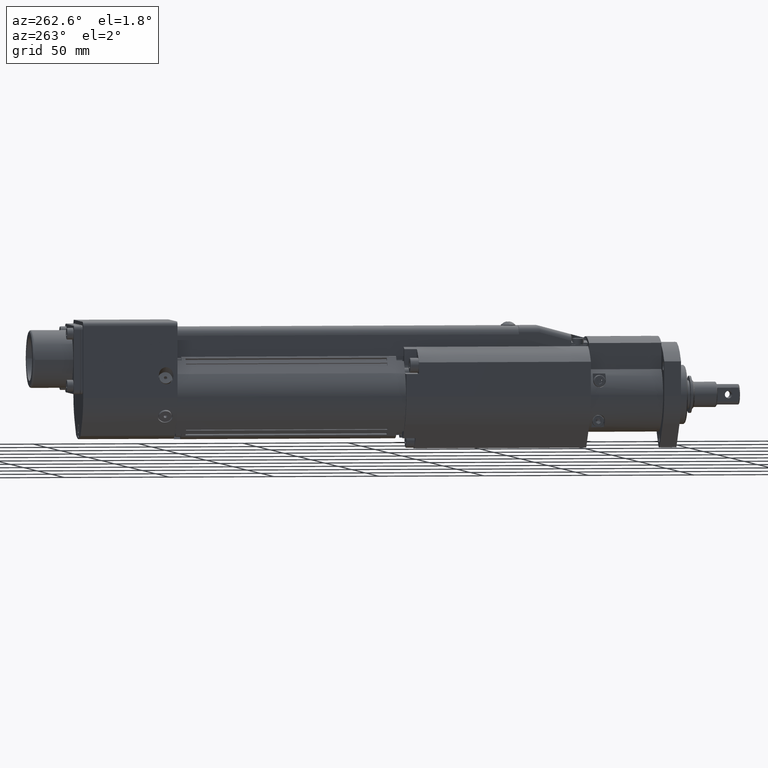
[diagram: clean part render]
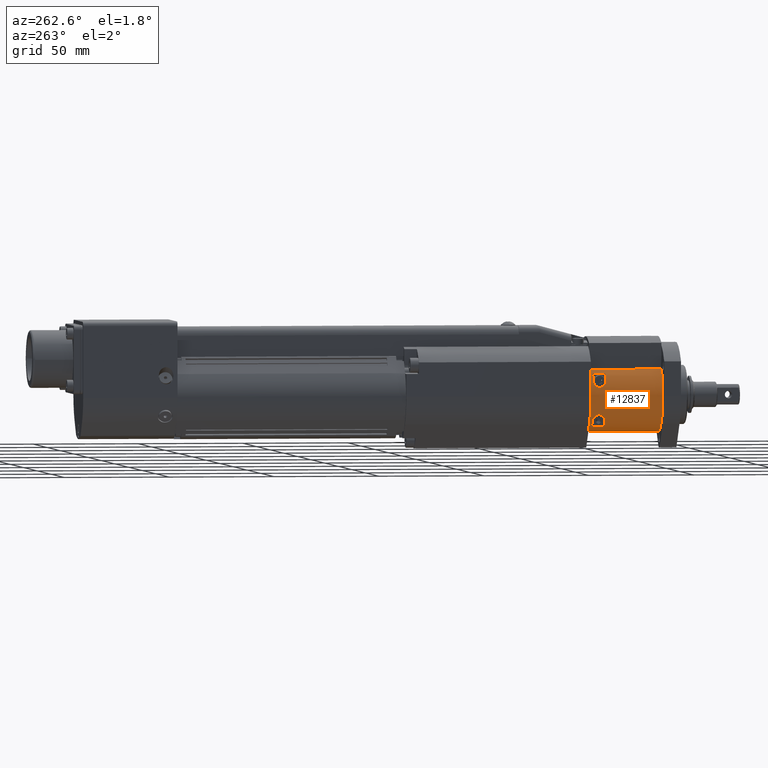
[diagram: same view with one face highlighted and labeled with its STEP entity id]
A machine part, auxiliary view. The second image highlights one B-rep face of the part: STEP entity #12837.
In plain terms, the highlighted cylindrical surface (partial cylindrical patch) has radius 17.5 mm, axis along (0, 1, -0).
Its self-contained STEP definition (entity closure, byte-faithful):
#219=B_SPLINE_CURVE_WITH_KNOTS('',3,(#22070,#22071,#22072,#22073,#22074,
#22075,#22076,#22077,#22078,#22079,#22080,#22081,#22082,#22083,#22084,#22085,
#22086,#22087,#22088),.UNSPECIFIED.,.F.,.F.,(4,2,2,2,3,2,2,2,4),(-0.465745547031507,
-0.345290531737388,-0.224835516443268,-0.112417758221634,0.,0.112417758221634,
0.224835516443268,0.345290531737387,0.465745547031506),.UNSPECIFIED.);
#220=B_SPLINE_CURVE_WITH_KNOTS('',3,(#22098,#22099,#22100,#22101,#22102,
#22103,#22104,#22105,#22106,#22107,#22108,#22109,#22110,#22111,#22112,#22113,
#22114,#22115),.UNSPECIFIED.,.F.,.F.,(4,2,2,2,2,2,2,2,4),(0.590634674204666,
0.737450123079501,0.884265571954336,0.994954185496832,1.10564279903933,
1.22353020791502,1.34141761679071,1.4810319807165,1.6206463446423),
 .UNSPECIFIED.);
#441=CYLINDRICAL_SURFACE('',#14072,17.5);
#533=FACE_BOUND('',#2018,.T.);
#534=FACE_BOUND('',#2019,.T.);
#1231=FACE_OUTER_BOUND('',#2017,.T.);
#2017=EDGE_LOOP('',(#10956,#10957,#10958,#10959));
#2018=EDGE_LOOP('',(#10960,#10961,#10962,#10963));
#2019=EDGE_LOOP('',(#10964,#10965,#10966,#10967));
#2521=CIRCLE('',#13988,17.5);
#2523=CIRCLE('',#13991,17.5);
#2524=CIRCLE('',#13993,17.5);
#2525=CIRCLE('',#13995,17.5);
#2527=CIRCLE('',#13999,17.5);
#2542=CIRCLE('',#14065,17.5);
#3532=LINE('',#22125,#4588);
#3535=LINE('',#22130,#4591);
#3598=LINE('',#22408,#4654);
#3599=LINE('',#22410,#4655);
#4588=VECTOR('',#17350,10.);
#4591=VECTOR('',#17357,10.);
#4654=VECTOR('',#17548,10.);
#4655=VECTOR('',#17551,10.);
#5694=VERTEX_POINT('',#22037);
#5695=VERTEX_POINT('',#22039);
#5698=VERTEX_POINT('',#22049);
#5699=VERTEX_POINT('',#22050);
#5701=VERTEX_POINT('',#22056);
#5702=VERTEX_POINT('',#22057);
#5704=VERTEX_POINT('',#22063);
#5705=VERTEX_POINT('',#22064);
#5707=VERTEX_POINT('',#22091);
#5708=VERTEX_POINT('',#22092);
#5712=VERTEX_POINT('',#22124);
#5778=VERTEX_POINT('',#22398);
#7379=EDGE_CURVE('',#5694,#5695,#2521,.T.);
#7385=EDGE_CURVE('',#5698,#5699,#2523,.T.);
#7388=EDGE_CURVE('',#5701,#5702,#2524,.T.);
#7391=EDGE_CURVE('',#5704,#5705,#2525,.T.);
#7394=EDGE_CURVE('',#5699,#5704,#219,.T.);
#7396=EDGE_CURVE('',#5707,#5708,#2527,.T.);
#7399=EDGE_CURVE('',#5702,#5707,#220,.T.);
#7404=EDGE_CURVE('',#5712,#5695,#3532,.T.);
#7407=EDGE_CURVE('',#5708,#5701,#3535,.T.);
#7508=EDGE_CURVE('',#5712,#5778,#2542,.T.);
#7512=EDGE_CURVE('',#5705,#5698,#3598,.T.);
#7513=EDGE_CURVE('',#5694,#5778,#3599,.T.);
#10956=ORIENTED_EDGE('',*,*,#7513,.T.);
#10957=ORIENTED_EDGE('',*,*,#7508,.F.);
#10958=ORIENTED_EDGE('',*,*,#7404,.T.);
#10959=ORIENTED_EDGE('',*,*,#7379,.F.);
#10960=ORIENTED_EDGE('',*,*,#7512,.F.);
#10961=ORIENTED_EDGE('',*,*,#7391,.F.);
#10962=ORIENTED_EDGE('',*,*,#7394,.F.);
#10963=ORIENTED_EDGE('',*,*,#7385,.F.);
#10964=ORIENTED_EDGE('',*,*,#7407,.F.);
#10965=ORIENTED_EDGE('',*,*,#7396,.F.);
#10966=ORIENTED_EDGE('',*,*,#7399,.F.);
#10967=ORIENTED_EDGE('',*,*,#7388,.F.);
#12837=ADVANCED_FACE('',(#1231,#533,#534),#441,.T.);
#13988=AXIS2_PLACEMENT_3D('',#22040,#17302,#17303);
#13991=AXIS2_PLACEMENT_3D('',#22051,#17312,#17313);
#13993=AXIS2_PLACEMENT_3D('',#22058,#17318,#17319);
#13995=AXIS2_PLACEMENT_3D('',#22065,#17324,#17325);
#13999=AXIS2_PLACEMENT_3D('',#22093,#17334,#17335);
#14065=AXIS2_PLACEMENT_3D('',#22399,#17534,#17535);
#14072=AXIS2_PLACEMENT_3D('',#22411,#17552,#17553);
#17302=DIRECTION('center_axis',(-2.39155854213811E-16,-1.,4.16333634234434E-16));
#17303=DIRECTION('ref_axis',(0.702857142857142,-4.64243433983707E-16,-0.711331031752935));
#17312=DIRECTION('center_axis',(-2.39155854213811E-16,-1.,5.27355936696949E-16));
#17313=DIRECTION('ref_axis',(0.702857142857142,-4.64243433983707E-16,-0.711331031752935));
#17318=DIRECTION('center_axis',(2.39155854213811E-16,1.,-4.16333634234434E-16));
#17319=DIRECTION('ref_axis',(0.702857142857142,-4.64243433983707E-16,-0.711331031752935));
#17324=DIRECTION('center_axis',(2.39155854213811E-16,1.,-4.16333634234434E-16));
#17325=DIRECTION('ref_axis',(0.702857142857142,-4.64243433983707E-16,-0.711331031752935));
#17334=DIRECTION('center_axis',(-2.39155854213811E-16,-1.,9.71445146547012E-16));
#17335=DIRECTION('ref_axis',(0.702857142857142,-4.64243433983707E-16,-0.711331031752935));
#17350=DIRECTION('',(-2.39155854213811E-16,-1.,4.16333634234434E-16));
#17357=DIRECTION('',(-2.39155854213811E-16,-1.,4.16333634234434E-16));
#17534=DIRECTION('center_axis',(7.21644966006352E-16,1.,-6.14759817044665E-16));
#17535=DIRECTION('ref_axis',(0.702857142857142,-4.64243433983707E-16,-0.711331031752935));
#17548=DIRECTION('',(2.39155854213811E-16,1.,-4.16333634234434E-16));
#17551=DIRECTION('',(2.39155854213811E-16,1.,-4.16333634234434E-16));
#17552=DIRECTION('center_axis',(2.39155854213811E-16,1.,-4.16333634234434E-16));
#17553=DIRECTION('ref_axis',(0.702857142857142,-4.64243433983707E-16,-0.711331031752935));
#22037=CARTESIAN_POINT('',(-12.3,-65.5,12.4482930556764));
#22039=CARTESIAN_POINT('',(-0.300000000000031,-65.5,-17.4974283824795));
#22040=CARTESIAN_POINT('Origin',(7.29913392843472E-15,-65.5,4.21190859967169E-14));
#22049=CARTESIAN_POINT('',(-14.,-32.5,10.5000000000001));
#22050=CARTESIAN_POINT('',(-16.0390149323454,-32.5,7.00000000000006));
#22051=CARTESIAN_POINT('Origin',(1.51912771174905E-14,-32.5,2.83800760669806E-14));
#22056=CARTESIAN_POINT('',(-9.00000000000001,-38.5,-15.0083310198036));
#22057=CARTESIAN_POINT('',(-12.737739202857,-38.5,-11.9999999999999));
#22058=CARTESIAN_POINT('Origin',(1.37563419922076E-14,-38.5,3.08780778723872E-14));
#22063=CARTESIAN_POINT('',(-16.0390149323454,-38.5,7.00000000000006));
#22064=CARTESIAN_POINT('',(-14.,-38.5,10.5000000000001));
#22065=CARTESIAN_POINT('Origin',(1.37563419922076E-14,-38.5,3.08780778723872E-14));
#22070=CARTESIAN_POINT('Ctrl Pts',(-16.0390149323454,-32.5,7.00000000000006));
#22071=CARTESIAN_POINT('Ctrl Pts',(-16.1996216194042,-32.5,6.63200384971848));
#22072=CARTESIAN_POINT('Ctrl Pts',(-16.3578915439738,-32.5720329967962,
6.23115927700068));
#22073=CARTESIAN_POINT('Ctrl Pts',(-16.6239123882701,-32.8808191443499,
5.48210710667829));
#22074=CARTESIAN_POINT('Ctrl Pts',(-16.7323406001072,-33.1179726753953,
5.13430535749554));
#22075=CARTESIAN_POINT('Ctrl Pts',(-16.8863366753858,-33.6610209265371,
4.60144857914905));
#22076=CARTESIAN_POINT('Ctrl Pts',(-16.9449126841093,-33.9940143625727,
4.37537965135184));
#22077=CARTESIAN_POINT('Ctrl Pts',(-17.019736441825,-34.7261672048157,4.07462684285703));
#22078=CARTESIAN_POINT('Ctrl Pts',(-17.0367250374008,-35.1252741392612,
4.00000000000006));
#22079=CARTESIAN_POINT('Ctrl Pts',(-17.0367250374008,-35.5,4.00000000000006));
#22080=CARTESIAN_POINT('Ctrl Pts',(-17.0367250374008,-35.8747258607388,
4.00000000000006));
#22081=CARTESIAN_POINT('Ctrl Pts',(-17.019736441825,-36.2738327951843,4.07462684285704));
#22082=CARTESIAN_POINT('Ctrl Pts',(-16.9449126841093,-37.0059856374273,
4.37537965135185));
#22083=CARTESIAN_POINT('Ctrl Pts',(-16.8863366753858,-37.3389790734629,
4.60144857914905));
#22084=CARTESIAN_POINT('Ctrl Pts',(-16.7323406001072,-37.8820273246047,
5.13430535749554));
#22085=CARTESIAN_POINT('Ctrl Pts',(-16.6239123882701,-38.1191808556501,
5.48210710667829));
#22086=CARTESIAN_POINT('Ctrl Pts',(-16.3578915439738,-38.4279670032037,
6.23115927700068));
#22087=CARTESIAN_POINT('Ctrl Pts',(-16.1996216194042,-38.5,6.63200384971849));
#22088=CARTESIAN_POINT('Ctrl Pts',(-16.0390149323454,-38.5,7.00000000000006));
#22091=CARTESIAN_POINT('',(-12.737739202857,-32.5,-12.));
#22092=CARTESIAN_POINT('',(-9.00000000000001,-32.5,-15.0083310198036));
#22093=CARTESIAN_POINT('Origin',(1.51912771174905E-14,-32.5,2.83800760669806E-14));
#22098=CARTESIAN_POINT('Ctrl Pts',(-12.737739202857,-38.5,-11.9999999999999));
#22099=CARTESIAN_POINT('Ctrl Pts',(-13.0733173717138,-38.5,-11.6437910669108));
#22100=CARTESIAN_POINT('Ctrl Pts',(-13.4205339618168,-38.4329763056192,
-11.2420903902687));
#22101=CARTESIAN_POINT('Ctrl Pts',(-14.0349130200958,-38.1116278286476,
-10.4650151520045));
#22102=CARTESIAN_POINT('Ctrl Pts',(-14.3025904342903,-37.8562604607546,
-10.0904795300501));
#22103=CARTESIAN_POINT('Ctrl Pts',(-14.6588832619237,-37.2808557444833,
-9.56253617057012));
#22104=CARTESIAN_POINT('Ctrl Pts',(-14.7910941088554,-36.9642788518224,
-9.35419424728925));
#22105=CARTESIAN_POINT('Ctrl Pts',(-14.9654351358067,-36.2583433386104,
-9.07266026756474));
#22106=CARTESIAN_POINT('Ctrl Pts',(-15.0083310198036,-35.8689620451417,
-8.99999999999995));
#22107=CARTESIAN_POINT('Ctrl Pts',(-15.0083310198036,-35.1070419704144,
-8.99999999999995));
#22108=CARTESIAN_POINT('Ctrl Pts',(-14.9598126959281,-34.6947804614797,
-9.0823069481204));
#22109=CARTESIAN_POINT('Ctrl Pts',(-14.7642572732064,-33.9556624825731,
-9.39686144415419));
#22110=CARTESIAN_POINT('Ctrl Pts',(-14.6161987054871,-33.6288300271183,
-9.62852928576234));
#22111=CARTESIAN_POINT('Ctrl Pts',(-14.2425258971573,-33.0824259239927,
-10.174933388888));
#22112=CARTESIAN_POINT('Ctrl Pts',(-13.9810249050007,-32.8512291528573,
-10.5359840172818));
#22113=CARTESIAN_POINT('Ctrl Pts',(-13.3883751439569,-32.5605734805869,
-11.2795137070452));
#22114=CARTESIAN_POINT('Ctrl Pts',(-13.0568577489731,-32.5,-11.6612625987315));
#22115=CARTESIAN_POINT('Ctrl Pts',(-12.737739202857,-32.5,-11.9999999999999));
#22124=CARTESIAN_POINT('',(-0.300000000000023,-31.,-17.4974283824795));
#22125=CARTESIAN_POINT('',(-0.300000000000031,-65.5,-17.4974283824795));
#22130=CARTESIAN_POINT('',(-9.00000000000001,-65.5,-15.0083310198036));
#22398=CARTESIAN_POINT('',(-12.3,-31.,12.4482930556764));
#22399=CARTESIAN_POINT('Origin',(1.55500108988112E-14,-31.,2.77555756156289E-14));
#22408=CARTESIAN_POINT('',(-14.,-65.5,10.5000000000001));
#22410=CARTESIAN_POINT('',(-12.3,-65.5,12.4482930556764));
#22411=CARTESIAN_POINT('Origin',(7.29913392843472E-15,-65.5,4.21190859967169E-14));